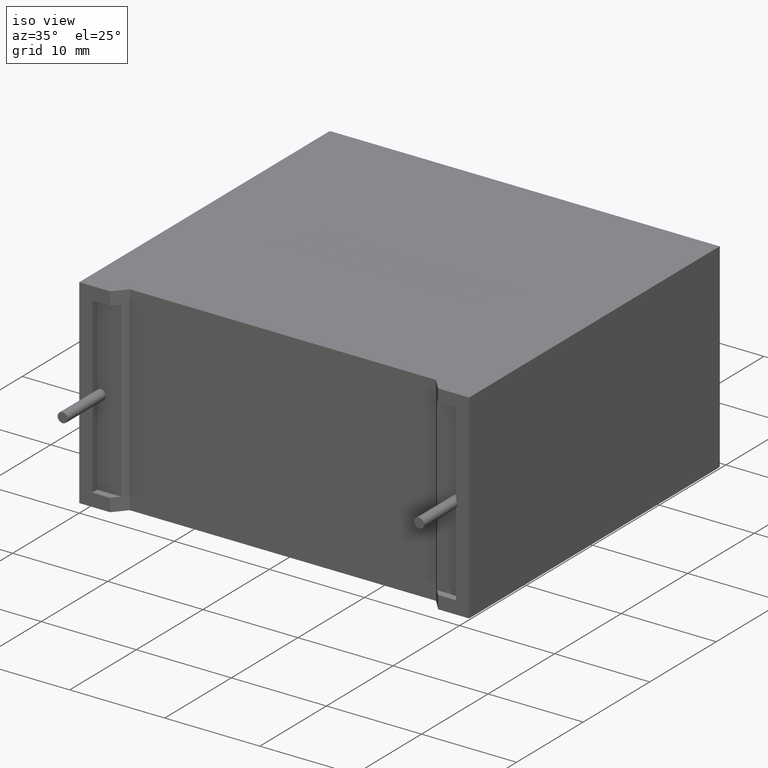
[diagram: clean part render]
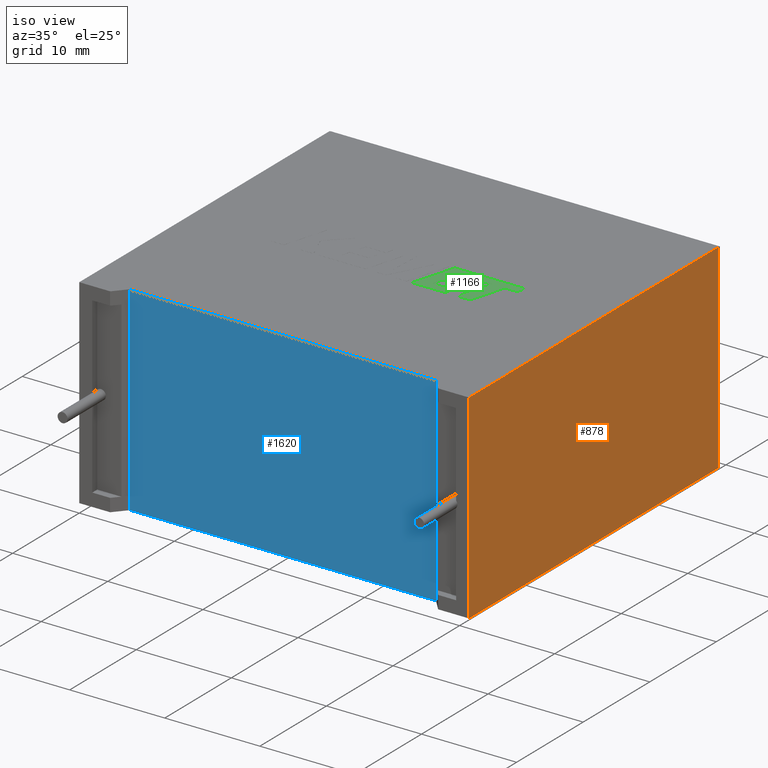
[diagram: same view with three faces highlighted in distinct colors, each labeled with its STEP entity id]
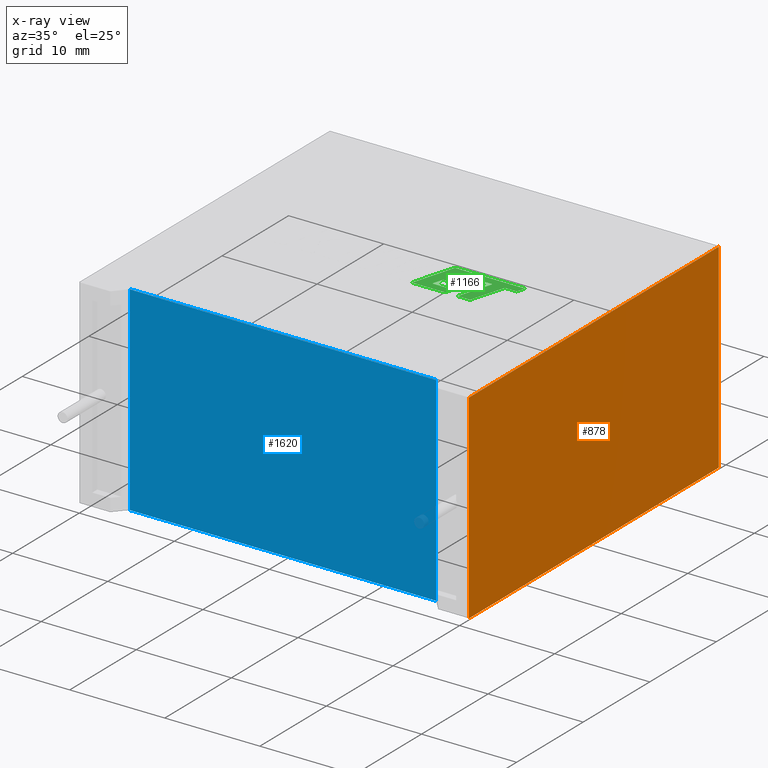
[diagram: x-ray of the same camera — body ghosted, the three highlighted faces saturated]
A machine part, iso view with three faces highlighted in distinct colors.
The next image is the same camera in x-ray (body ghosted, the three faces saturated) — at least one of them is partly hidden behind the body in this view.
Their STEP definitions:

[orange] entity #878 — the highlighted planar face has unit normal (-1, 0, 0).
#74 = FACE_OUTER_BOUND ( 'NONE', #1779, .T. ) ;
#103 = ORIENTED_EDGE ( 'NONE', *, *, #326, .F. ) ;
#116 = DIRECTION ( 'NONE',  ( 0.000000000000000000, 0.000000000000000000, 1.000000000000000000 ) ) ;
#212 = CARTESIAN_POINT ( 'NONE',  ( 41.00000000000000000, 37.50000000000000000, 0.000000000000000000 ) ) ;
#238 = LINE ( 'NONE', #506, #1028 ) ;
#326 = EDGE_CURVE ( 'NONE', #2863, #2835, #238, .T. ) ;
#357 = ORIENTED_EDGE ( 'NONE', *, *, #368, .T. ) ;
#368 = EDGE_CURVE ( 'NONE', #2863, #1172, #2028, .T. ) ;
#465 = ORIENTED_EDGE ( 'NONE', *, *, #2426, .T. ) ;
#506 = CARTESIAN_POINT ( 'NONE',  ( 41.00000000000000000, 0.000000000000000000, 21.00000000000000000 ) ) ;
#548 = VECTOR ( 'NONE', #1022, 1000.000000000000000 ) ;
#878 = ADVANCED_FACE ( 'NONE', ( #74 ), #2330, .F. ) ;
#881 = ORIENTED_EDGE ( 'NONE', *, *, #3156, .T. ) ;
#951 = CARTESIAN_POINT ( 'NONE',  ( 41.00000000000000000, 0.000000000000000000, 21.00000000000000000 ) ) ;
#988 = CARTESIAN_POINT ( 'NONE',  ( 41.00000000000000000, 0.000000000000000000, 21.00000000000000000 ) ) ;
#1022 = DIRECTION ( 'NONE',  ( -0.000000000000000000, -0.000000000000000000, -1.000000000000000000 ) ) ;
#1028 = VECTOR ( 'NONE', #1528, 1000.000000000000000 ) ;
#1172 = VERTEX_POINT ( 'NONE', #1478 ) ;
#1370 = DIRECTION ( 'NONE',  ( -1.000000000000000000, 0.000000000000000000, 0.000000000000000000 ) ) ;
#1399 = CARTESIAN_POINT ( 'NONE',  ( 41.00000000000000000, 37.50000000000000000, 21.00000000000000000 ) ) ;
#1478 = CARTESIAN_POINT ( 'NONE',  ( 41.00000000000000000, 0.000000000000000000, 0.000000000000000000 ) ) ;
#1528 = DIRECTION ( 'NONE',  ( 0.000000000000000000, 1.000000000000000000, 0.000000000000000000 ) ) ;
#1654 = CARTESIAN_POINT ( 'NONE',  ( 41.00000000000000000, 0.000000000000000000, 0.000000000000000000 ) ) ;
#1779 = EDGE_LOOP ( 'NONE', ( #881, #465, #103, #357 ) ) ;
#2028 = LINE ( 'NONE', #988, #548 ) ;
#2112 = DIRECTION ( 'NONE',  ( 0.000000000000000000, 1.000000000000000000, 0.000000000000000000 ) ) ;
#2114 = DIRECTION ( 'NONE',  ( -0.000000000000000000, -0.000000000000000000, 1.000000000000000000 ) ) ;
#2330 = PLANE ( 'NONE',  #2936 ) ;
#2426 = EDGE_CURVE ( 'NONE', #2480, #2835, #2844, .T. ) ;
#2480 = VERTEX_POINT ( 'NONE', #212 ) ;
#2835 = VERTEX_POINT ( 'NONE', #1399 ) ;
#2841 = LINE ( 'NONE', #1654, #3090 ) ;
#2844 = LINE ( 'NONE', #3107, #2850 ) ;
#2850 = VECTOR ( 'NONE', #2114, 1000.000000000000000 ) ;
#2863 = VERTEX_POINT ( 'NONE', #951 ) ;
#2936 = AXIS2_PLACEMENT_3D ( 'NONE', #3044, #1370, #116 ) ;
#3044 = CARTESIAN_POINT ( 'NONE',  ( 41.00000000000000000, 0.000000000000000000, 21.00000000000000000 ) ) ;
#3090 = VECTOR ( 'NONE', #2112, 1000.000000000000000 ) ;
#3107 = CARTESIAN_POINT ( 'NONE',  ( 41.00000000000000000, 37.50000000000000000, 21.00000000000000000 ) ) ;
#3156 = EDGE_CURVE ( 'NONE', #1172, #2480, #2841, .T. ) ;

[blue] entity #1620 — the highlighted planar face has unit normal (-0, 1, 0).
#1 = ORIENTED_EDGE ( 'NONE', *, *, #554, .T. ) ;
#10 = DIRECTION ( 'NONE',  ( -1.000000000000000000, -1.345879506022127746E-16, 0.000000000000000000 ) ) ;
#106 = ORIENTED_EDGE ( 'NONE', *, *, #121, .F. ) ;
#121 = EDGE_CURVE ( 'NONE', #945, #1750, #2604, .T. ) ;
#164 = CARTESIAN_POINT ( 'NONE',  ( 4.388570000000002302, 1.310239999999998961, 0.000000000000000000 ) ) ;
#196 = CARTESIAN_POINT ( 'NONE',  ( 36.61142999999999859, 1.310239999999998961, 0.000000000000000000 ) ) ;
#249 = DIRECTION ( 'NONE',  ( -1.000000000000000000, -1.345879506022127746E-16, 0.000000000000000000 ) ) ;
#554 = EDGE_CURVE ( 'NONE', #1053, #1750, #1521, .T. ) ;
#843 = CARTESIAN_POINT ( 'NONE',  ( 36.61142999999999859, 1.310239999999998961, 0.000000000000000000 ) ) ;
#871 = CARTESIAN_POINT ( 'NONE',  ( 20.50000000000000000, 1.310240000000001181, 0.000000000000000000 ) ) ;
#935 = LINE ( 'NONE', #196, #985 ) ;
#945 = VERTEX_POINT ( 'NONE', #3070 ) ;
#985 = VECTOR ( 'NONE', #1655, 1000.000000000000000 ) ;
#1053 = VERTEX_POINT ( 'NONE', #3108 ) ;
#1089 = AXIS2_PLACEMENT_3D ( 'NONE', #871, #1827, #1319 ) ;
#1261 = LINE ( 'NONE', #1550, #2489 ) ;
#1319 = DIRECTION ( 'NONE',  ( -1.000000000000000000, -1.345879506022127993E-16, 0.000000000000000000 ) ) ;
#1451 = EDGE_LOOP ( 'NONE', ( #1, #106, #1782, #1775 ) ) ;
#1521 = LINE ( 'NONE', #2486, #2011 ) ;
#1550 = CARTESIAN_POINT ( 'NONE',  ( 20.50000000000000000, 1.310240000000001181, 0.000000000000000000 ) ) ;
#1569 = PLANE ( 'NONE',  #1089 ) ;
#1620 = ADVANCED_FACE ( 'NONE', ( #2563 ), #1569, .F. ) ;
#1655 = DIRECTION ( 'NONE',  ( -0.000000000000000000, -0.000000000000000000, 1.000000000000000000 ) ) ;
#1678 = EDGE_CURVE ( 'NONE', #2492, #1053, #935, .T. ) ;
#1703 = VECTOR ( 'NONE', #3102, 1000.000000000000000 ) ;
#1750 = VERTEX_POINT ( 'NONE', #1763 ) ;
#1763 = CARTESIAN_POINT ( 'NONE',  ( 4.388570000000002302, 1.310239999999998961, 21.00000000000000000 ) ) ;
#1775 = ORIENTED_EDGE ( 'NONE', *, *, #1678, .T. ) ;
#1782 = ORIENTED_EDGE ( 'NONE', *, *, #2324, .F. ) ;
#1827 = DIRECTION ( 'NONE',  ( -1.345879506022127993E-16, 1.000000000000000000, 0.000000000000000000 ) ) ;
#2011 = VECTOR ( 'NONE', #249, 1000.000000000000000 ) ;
#2324 = EDGE_CURVE ( 'NONE', #2492, #945, #1261, .T. ) ;
#2486 = CARTESIAN_POINT ( 'NONE',  ( 20.50000000000000000, 1.310240000000001181, 21.00000000000000000 ) ) ;
#2489 = VECTOR ( 'NONE', #10, 1000.000000000000000 ) ;
#2492 = VERTEX_POINT ( 'NONE', #843 ) ;
#2563 = FACE_OUTER_BOUND ( 'NONE', #1451, .T. ) ;
#2604 = LINE ( 'NONE', #164, #1703 ) ;
#3070 = CARTESIAN_POINT ( 'NONE',  ( 4.388570000000002302, 1.310239999999998961, 0.000000000000000000 ) ) ;
#3102 = DIRECTION ( 'NONE',  ( -0.000000000000000000, -0.000000000000000000, 1.000000000000000000 ) ) ;
#3108 = CARTESIAN_POINT ( 'NONE',  ( 36.61142999999999859, 1.310239999999998961, 21.00000000000000000 ) ) ;

[green] entity #1166 — the highlighted planar face has unit normal (0, 0, 1).
#3 = LINE ( 'NONE', #2734, #765 ) ;
#11 = EDGE_CURVE ( 'NONE', #681, #3071, #751, .T. ) ;
#25 = EDGE_CURVE ( 'NONE', #685, #2927, #3, .T. ) ;
#84 = ORIENTED_EDGE ( 'NONE', *, *, #2189, .T. ) ;
#105 = DIRECTION ( 'NONE',  ( -1.000000000000000000, 0.000000000000000000, 0.000000000000000000 ) ) ;
#113 = LINE ( 'NONE', #370, #133 ) ;
#126 = VECTOR ( 'NONE', #745, 1000.000000000000000 ) ;
#133 = VECTOR ( 'NONE', #1630, 1000.000000000000000 ) ;
#137 = CARTESIAN_POINT ( 'NONE',  ( 30.71511778108949997, 20.05704810453053710, 21.00500000000000256 ) ) ;
#151 = VERTEX_POINT ( 'NONE', #1637 ) ;
#166 = EDGE_CURVE ( 'NONE', #3118, #2973, #649, .T. ) ;
#176 = LINE ( 'NONE', #3130, #511 ) ;
#224 = ORIENTED_EDGE ( 'NONE', *, *, #1900, .T. ) ;
#253 = CARTESIAN_POINT ( 'NONE',  ( 25.90664625795381681, 20.06946165775578805, 21.00500000000000256 ) ) ;
#262 = DIRECTION ( 'NONE',  ( -1.000000000000000000, 0.000000000000000000, 0.000000000000000000 ) ) ;
#275 = DIRECTION ( 'NONE',  ( 0.2745159998572630489, 0.9615825319869153454, 0.000000000000000000 ) ) ;
#284 = LINE ( 'NONE', #1304, #990 ) ;
#291 = VECTOR ( 'NONE', #1716, 1000.000000000000000 ) ;
#370 = CARTESIAN_POINT ( 'NONE',  ( 23.53421935377032881, 16.35139999999985605, 21.00500000000000256 ) ) ;
#398 = AXIS2_PLACEMENT_3D ( 'NONE', #512, #992, #478 ) ;
#404 = ORIENTED_EDGE ( 'NONE', *, *, #517, .T. ) ;
#455 = VECTOR ( 'NONE', #653, 1000.000000000000227 ) ;
#478 = DIRECTION ( 'NONE',  ( 1.000000000000000000, 0.000000000000000000, 0.000000000000000000 ) ) ;
#511 = VECTOR ( 'NONE', #944, 999.9999999999998863 ) ;
#512 = CARTESIAN_POINT ( 'NONE',  ( -0.4984593669328484244, 1.487473959261242928, 21.00499999999999545 ) ) ;
#517 = EDGE_CURVE ( 'NONE', #2726, #1308, #1268, .T. ) ;
#521 = ORIENTED_EDGE ( 'NONE', *, *, #1476, .T. ) ;
#541 = CARTESIAN_POINT ( 'NONE',  ( 24.85513871262669028, 20.94374444033236671, 21.00500000000000256 ) ) ;
#568 = DIRECTION ( 'NONE',  ( 0.2762033010290175228, 0.9610992334304890861, 0.000000000000000000 ) ) ;
#571 = EDGE_CURVE ( 'NONE', #1308, #681, #1240, .T. ) ;
#574 = DIRECTION ( 'NONE',  ( 0.2762437428917223770, 0.9610876102172850599, 0.000000000000000000 ) ) ;
#616 = ORIENTED_EDGE ( 'NONE', *, *, #2166, .T. ) ;
#618 = LINE ( 'NONE', #3105, #3030 ) ;
#649 = LINE ( 'NONE', #2669, #2566 ) ;
#653 = DIRECTION ( 'NONE',  ( 0.9999999968487351953, -7.938847109813994231E-05, 0.000000000000000000 ) ) ;
#681 = VERTEX_POINT ( 'NONE', #1600 ) ;
#685 = VERTEX_POINT ( 'NONE', #1301 ) ;
#688 = DIRECTION ( 'NONE',  ( -0.2763173343569615414, -0.9610664548999008350, 0.000000000000000000 ) ) ;
#690 = CARTESIAN_POINT ( 'NONE',  ( 31.97245930846490936, 20.05694828610871383, 21.00500000000000256 ) ) ;
#701 = ORIENTED_EDGE ( 'NONE', *, *, #2476, .T. ) ;
#745 = DIRECTION ( 'NONE',  ( -1.000000000000000000, 0.000000000000000000, 0.000000000000000000 ) ) ;
#751 = LINE ( 'NONE', #1685, #917 ) ;
#755 = ORIENTED_EDGE ( 'NONE', *, *, #2126, .T. ) ;
#765 = VECTOR ( 'NONE', #2544, 1000.000000000000114 ) ;
#856 = EDGE_LOOP ( 'NONE', ( #224, #84, #1878, #942, #521, #701, #1615, #616, #755, #966, #3112, #404, #2080, #2042, #2283, #1364, #1111 ) ) ;
#887 = VECTOR ( 'NONE', #2541, 1000.000000000000114 ) ;
#914 = CARTESIAN_POINT ( 'NONE',  ( 29.40724033672170634, 20.05704810454195552, 21.00500000000000256 ) ) ;
#917 = VECTOR ( 'NONE', #1747, 1000.000000000000000 ) ;
#919 = DIRECTION ( 'NONE',  ( 0.2746918797667270429, 0.9615323037684286867, 0.000000000000000000 ) ) ;
#942 = ORIENTED_EDGE ( 'NONE', *, *, #1429, .T. ) ;
#944 = DIRECTION ( 'NONE',  ( 0.9999960426590096541, -0.002813301676021314705, 0.000000000000000000 ) ) ;
#955 = CARTESIAN_POINT ( 'NONE',  ( 27.62887665846738372, 19.21528631795630560, 21.00500000000000256 ) ) ;
#957 = EDGE_CURVE ( 'NONE', #3071, #2656, #1150, .T. ) ;
#966 = ORIENTED_EDGE ( 'NONE', *, *, #2457, .T. ) ;
#989 = VECTOR ( 'NONE', #568, 1000.000000000000227 ) ;
#990 = VECTOR ( 'NONE', #1992, 999.9999999999998863 ) ;
#992 = DIRECTION ( 'NONE',  ( 0.000000000000000000, 0.000000000000000000, 1.000000000000000000 ) ) ;
#1054 = CARTESIAN_POINT ( 'NONE',  ( 28.34182513978961993, 16.35139999999985960, 21.00500000000000256 ) ) ;
#1077 = VECTOR ( 'NONE', #262, 1000.000000000000000 ) ;
#1111 = ORIENTED_EDGE ( 'NONE', *, *, #25, .T. ) ;
#1134 = DIRECTION ( 'NONE',  ( 0.9999891854650020395, -0.004650693823678666954, 0.000000000000000000 ) ) ;
#1150 = LINE ( 'NONE', #2646, #2167 ) ;
#1156 = FACE_OUTER_BOUND ( 'NONE', #856, .T. ) ;
#1166 = ADVANCED_FACE ( 'NONE', ( #1156 ), #2878, .T. ) ;
#1168 = LINE ( 'NONE', #2385, #1249 ) ;
#1190 = VERTEX_POINT ( 'NONE', #2411 ) ;
#1208 = CARTESIAN_POINT ( 'NONE',  ( 28.34182513978961993, 16.35139999999985960, 21.00500000000000256 ) ) ;
#1240 = LINE ( 'NONE', #3179, #1860 ) ;
#1241 = CARTESIAN_POINT ( 'NONE',  ( 29.65000978120202291, 16.35139999999985960, 21.00500000000000256 ) ) ;
#1249 = VECTOR ( 'NONE', #1134, 1000.000000000000227 ) ;
#1251 = EDGE_CURVE ( 'NONE', #2656, #685, #2893, .T. ) ;
#1258 = LINE ( 'NONE', #1208, #291 ) ;
#1268 = LINE ( 'NONE', #1764, #1077 ) ;
#1301 = CARTESIAN_POINT ( 'NONE',  ( 25.65809592367594760, 19.21528631795630560, 21.00500000000000256 ) ) ;
#1304 = CARTESIAN_POINT ( 'NONE',  ( 27.00387031227157664, 16.35139999999985960, 21.00500000000000256 ) ) ;
#1308 = VERTEX_POINT ( 'NONE', #2431 ) ;
#1360 = LINE ( 'NONE', #2349, #2027 ) ;
#1364 = ORIENTED_EDGE ( 'NONE', *, *, #1251, .T. ) ;
#1429 = EDGE_CURVE ( 'NONE', #2973, #2586, #1258, .T. ) ;
#1476 = EDGE_CURVE ( 'NONE', #2586, #151, #618, .T. ) ;
#1537 = CARTESIAN_POINT ( 'NONE',  ( 27.38638648402514875, 18.36647296289587672, 21.00500000000000256 ) ) ;
#1600 = CARTESIAN_POINT ( 'NONE',  ( 25.41588501927227028, 18.36647296289587672, 21.00500000000000256 ) ) ;
#1615 = ORIENTED_EDGE ( 'NONE', *, *, #3016, .T. ) ;
#1630 = DIRECTION ( 'NONE',  ( 1.000000000000000000, 5.694109626320595965E-16, 0.000000000000000000 ) ) ;
#1637 = CARTESIAN_POINT ( 'NONE',  ( 30.71511778108949997, 20.05704810453053710, 21.00500000000000256 ) ) ;
#1649 = VERTEX_POINT ( 'NONE', #3121 ) ;
#1685 = CARTESIAN_POINT ( 'NONE',  ( 25.41588501927227028, 18.36647296289587672, 21.00500000000000256 ) ) ;
#1716 = DIRECTION ( 'NONE',  ( 1.000000000000000000, 0.000000000000000000, 0.000000000000000000 ) ) ;
#1747 = DIRECTION ( 'NONE',  ( 1.000000000000000000, 1.002616505299178603E-15, 0.000000000000000000 ) ) ;
#1764 = CARTESIAN_POINT ( 'NONE',  ( 27.25183417946799835, 17.22526387751107535, 21.00500000000000256 ) ) ;
#1857 = CARTESIAN_POINT ( 'NONE',  ( 27.25183417946799835, 17.22526387751107535, 21.00500000000000256 ) ) ;
#1860 = VECTOR ( 'NONE', #275, 1000.000000000000000 ) ;
#1878 = ORIENTED_EDGE ( 'NONE', *, *, #166, .T. ) ;
#1882 = VERTEX_POINT ( 'NONE', #2617 ) ;
#1900 = EDGE_CURVE ( 'NONE', #2927, #1882, #176, .T. ) ;
#1992 = DIRECTION ( 'NONE',  ( 0.2729786930694848013, 0.9620200793798828753, 0.000000000000000000 ) ) ;
#2027 = VECTOR ( 'NONE', #105, 1000.000000000000000 ) ;
#2042 = ORIENTED_EDGE ( 'NONE', *, *, #11, .T. ) ;
#2058 = LINE ( 'NONE', #541, #887 ) ;
#2059 = VERTEX_POINT ( 'NONE', #2310 ) ;
#2068 = LINE ( 'NONE', #2547, #989 ) ;
#2080 = ORIENTED_EDGE ( 'NONE', *, *, #571, .T. ) ;
#2126 = EDGE_CURVE ( 'NONE', #2505, #1190, #2058, .T. ) ;
#2166 = EDGE_CURVE ( 'NONE', #2059, #2505, #1360, .T. ) ;
#2167 = VECTOR ( 'NONE', #919, 1000.000000000000227 ) ;
#2189 = EDGE_CURVE ( 'NONE', #1882, #3118, #1168, .T. ) ;
#2279 = EDGE_CURVE ( 'NONE', #1649, #2726, #284, .T. ) ;
#2283 = ORIENTED_EDGE ( 'NONE', *, *, #957, .T. ) ;
#2310 = CARTESIAN_POINT ( 'NONE',  ( 32.22730918932700916, 20.94374444033236671, 21.00500000000000256 ) ) ;
#2349 = CARTESIAN_POINT ( 'NONE',  ( 32.22730918932700916, 20.94374444033236671, 21.00500000000000256 ) ) ;
#2385 = CARTESIAN_POINT ( 'NONE',  ( 28.01111356018318332, 20.06354113293775754, 21.00500000000000256 ) ) ;
#2411 = CARTESIAN_POINT ( 'NONE',  ( 23.53421935377032881, 16.35139999999985605, 21.00500000000000256 ) ) ;
#2431 = CARTESIAN_POINT ( 'NONE',  ( 25.09008859234127087, 17.22526387751107535, 21.00500000000000256 ) ) ;
#2457 = EDGE_CURVE ( 'NONE', #1190, #1649, #113, .T. ) ;
#2476 = EDGE_CURVE ( 'NONE', #151, #3170, #2825, .T. ) ;
#2505 = VERTEX_POINT ( 'NONE', #2702 ) ;
#2510 = CARTESIAN_POINT ( 'NONE',  ( 27.62887665846738372, 19.21528631795630560, 21.00500000000000256 ) ) ;
#2541 = DIRECTION ( 'NONE',  ( -0.2764273280489764617, -0.9610348236706636182, 0.000000000000000000 ) ) ;
#2544 = DIRECTION ( 'NONE',  ( 0.2793947940814923148, 0.9601763114346033579, 0.000000000000000000 ) ) ;
#2547 = CARTESIAN_POINT ( 'NONE',  ( 31.97245930846490936, 20.05694828610871383, 21.00500000000000256 ) ) ;
#2566 = VECTOR ( 'NONE', #688, 1000.000000000000000 ) ;
#2586 = VERTEX_POINT ( 'NONE', #1241 ) ;
#2617 = CARTESIAN_POINT ( 'NONE',  ( 28.01111356018318332, 20.06354113293775754, 21.00500000000000256 ) ) ;
#2646 = CARTESIAN_POINT ( 'NONE',  ( 27.38638648402514875, 18.36647296289587672, 21.00500000000000256 ) ) ;
#2656 = VERTEX_POINT ( 'NONE', #2510 ) ;
#2669 = CARTESIAN_POINT ( 'NONE',  ( 29.40724033672170634, 20.05704810454195552, 21.00500000000000256 ) ) ;
#2702 = CARTESIAN_POINT ( 'NONE',  ( 24.85513871262669028, 20.94374444033236671, 21.00500000000000256 ) ) ;
#2726 = VERTEX_POINT ( 'NONE', #1857 ) ;
#2734 = CARTESIAN_POINT ( 'NONE',  ( 25.65809592367594760, 19.21528631795630560, 21.00500000000000256 ) ) ;
#2825 = LINE ( 'NONE', #137, #455 ) ;
#2878 = PLANE ( 'NONE',  #398 ) ;
#2893 = LINE ( 'NONE', #955, #126 ) ;
#2927 = VERTEX_POINT ( 'NONE', #253 ) ;
#2973 = VERTEX_POINT ( 'NONE', #1054 ) ;
#3016 = EDGE_CURVE ( 'NONE', #3170, #2059, #2068, .T. ) ;
#3030 = VECTOR ( 'NONE', #574, 1000.000000000000000 ) ;
#3071 = VERTEX_POINT ( 'NONE', #1537 ) ;
#3105 = CARTESIAN_POINT ( 'NONE',  ( 29.65000978120202291, 16.35139999999985960, 21.00500000000000256 ) ) ;
#3112 = ORIENTED_EDGE ( 'NONE', *, *, #2279, .T. ) ;
#3118 = VERTEX_POINT ( 'NONE', #914 ) ;
#3121 = CARTESIAN_POINT ( 'NONE',  ( 27.00387031227157664, 16.35139999999985960, 21.00500000000000256 ) ) ;
#3130 = CARTESIAN_POINT ( 'NONE',  ( 25.90664625795381681, 20.06946165775578805, 21.00500000000000256 ) ) ;
#3170 = VERTEX_POINT ( 'NONE', #690 ) ;
#3179 = CARTESIAN_POINT ( 'NONE',  ( 25.09008859234127087, 17.22526387751107535, 21.00500000000000256 ) ) ;